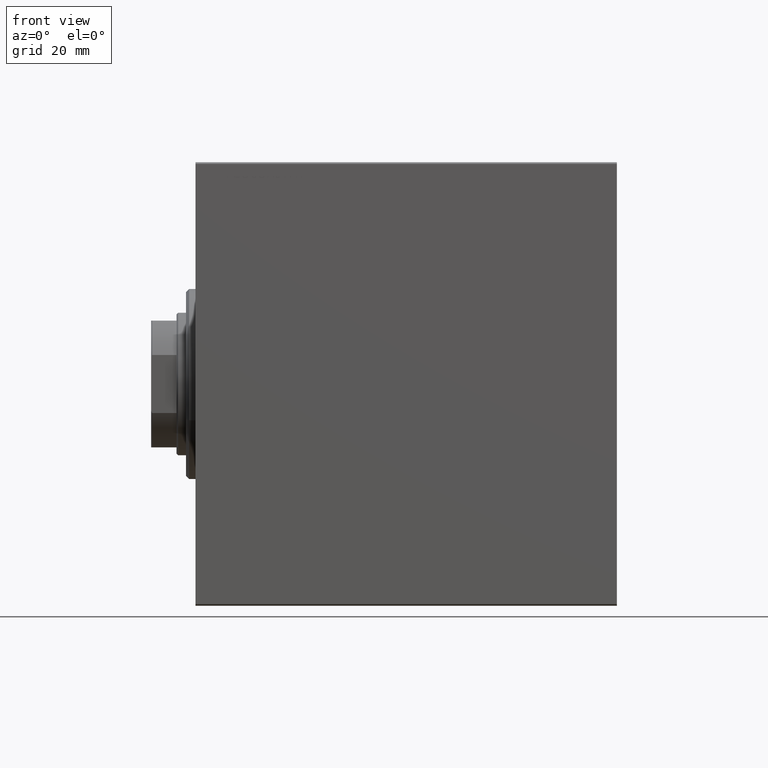
[diagram: clean part render]
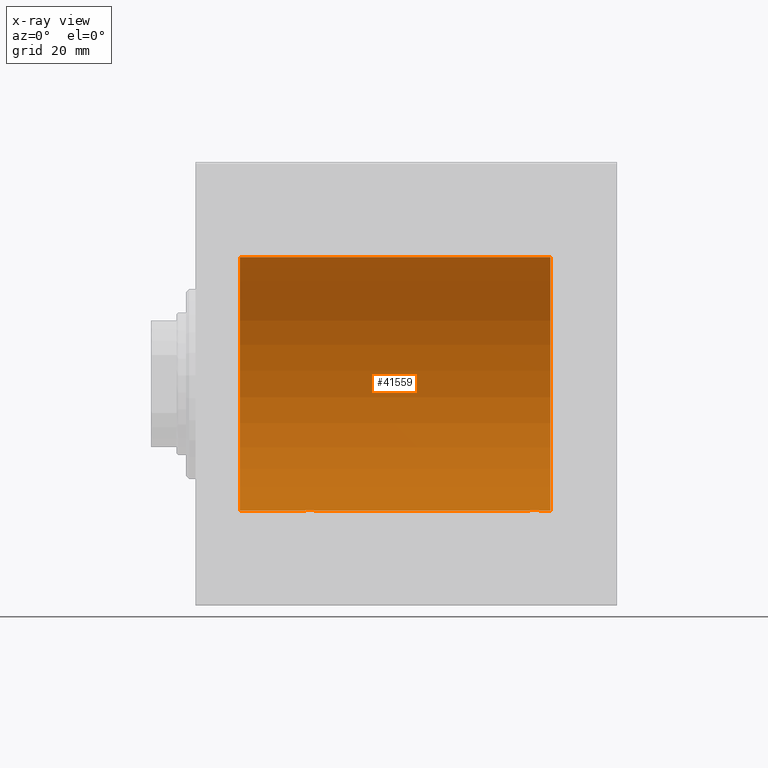
[diagram: x-ray — body ghosted, one internal face saturated and labeled with its STEP entity id]
A machine part, front view, then the same camera in x-ray: the body is ghosted and one INTERNAL B-rep face — a face not visible from any outside direction — is saturated and labeled: STEP entity #41559.
In plain terms, the highlighted cylindrical surface (partial cylindrical patch) has radius 40 mm, axis along (-1, -0, -0).
Its self-contained STEP definition (entity closure, byte-faithful):
#199 = CARTESIAN_POINT ( 'NONE',  ( 109.3851693796940339, 1.830069308885378110, -39.95844440547435283 ) ) ;
#1621 = CARTESIAN_POINT ( 'NONE',  ( 33.61400897252563880, 1.829066045078060476, -39.95849278436324425 ) ) ;
#1833 = CARTESIAN_POINT ( 'NONE',  ( 35.22113368114476373, 2.903851887155405986, -39.89447500423337800 ) ) ;
#2168 = DIRECTION ( 'NONE',  ( -1.000000000000000000, 0.000000000000000000, 0.000000000000000000 ) ) ;
#2203 = DIRECTION ( 'NONE',  ( -1.000000000000000000, -0.000000000000000000, -0.000000000000000000 ) ) ;
#2585 = VECTOR ( 'NONE', #9334, 1000.000000000000000 ) ;
#2707 = CARTESIAN_POINT ( 'NONE',  ( 37.82931819589460076, 2.385749008316991215, -39.92893738690724348 ) ) ;
#2888 = CARTESIAN_POINT ( 'NONE',  ( 105.6709769446327556, 2.696641662727015554, -39.90906847305313221 ) ) ;
#3010 = EDGE_CURVE ( 'NONE', #3362, #3631, #10875, .T. ) ;
#3062 = ORIENTED_EDGE ( 'NONE', *, *, #41254, .F. ) ;
#3312 = CARTESIAN_POINT ( 'NONE',  ( 109.6024213809765939, 1.505187563392004879, -39.97200074276641857 ) ) ;
#3362 = VERTEX_POINT ( 'NONE', #7033 ) ;
#3522 = CARTESIAN_POINT ( 'NONE',  ( 112.0000000000000000, 4.898587196589413026E-15, -40.00000000000000000 ) ) ;
#3631 = VERTEX_POINT ( 'NONE', #17435 ) ;
#3837 = ORIENTED_EDGE ( 'NONE', *, *, #26456, .F. ) ;
#4806 = CARTESIAN_POINT ( 'NONE',  ( 39.00000000000000000, 4.898587181755365697E-15, -40.00000000000000000 ) ) ;
#4881 = EDGE_CURVE ( 'NONE', #32832, #27364, #6000, .T. ) ;
#5386 = CARTESIAN_POINT ( 'NONE',  ( 35.60845757909898879, 2.980886287300823945, -39.88879301994635540 ) ) ;
#5534 = CARTESIAN_POINT ( 'NONE',  ( 112.0000000000000000, 4.898587196589413026E-15, -40.00000000000000000 ) ) ;
#5825 = CARTESIAN_POINT ( 'NONE',  ( 34.01744788009703058, 2.260036752248987479, -39.93634209860680073 ) ) ;
#5997 = CARTESIAN_POINT ( 'NONE',  ( 105.1684626644925515, 2.384195078505204179, -39.92903310064217948 ) ) ;
#6000 = LINE ( 'NONE', #19578, #2585 ) ;
#6264 = CARTESIAN_POINT ( 'NONE',  ( 37.50429356860058761, 2.602941461497656039, -39.91536715259250911 ) ) ;
#6475 = CARTESIAN_POINT ( 'NONE',  ( 38.69635323069529420, 1.329803094607265201, -39.97830262548650637 ) ) ;
#6648 = CARTESIAN_POINT ( 'NONE',  ( 107.9653829776025447, 2.847223932150729109, -39.89860891179019120 ) ) ;
#6863 = CARTESIAN_POINT ( 'NONE',  ( 105.4964356991660708, 2.603499486649436534, -39.91533365697402758 ) ) ;
#7033 = CARTESIAN_POINT ( 'NONE',  ( 104.0000000000000142, 4.637093495725619447E-15, -40.00000000000000000 ) ) ;
#8193 = AXIS2_PLACEMENT_3D ( 'NONE', #22638, #2168, #15731 ) ;
#8519 = CARTESIAN_POINT ( 'NONE',  ( 32.99999999999998579, 0.1982918730505277005, -39.99999999999999289 ) ) ;
#8805 = CARTESIAN_POINT ( 'NONE',  ( 13.99999999999999822, 0.000000000000000000, 40.00000000000000000 ) ) ;
#9158 = CARTESIAN_POINT ( 'NONE',  ( 33.74070487342093827, 1.983397227149410025, -39.95103655448513535 ) ) ;
#9334 = DIRECTION ( 'NONE',  ( -1.000000000000000000, -0.000000000000000000, -0.000000000000000000 ) ) ;
#9516 = LINE ( 'NONE', #5534, #26483 ) ;
#9549 = CARTESIAN_POINT ( 'NONE',  ( 104.0000000000000142, 4.637093495725619447E-15, -40.00000000000000000 ) ) ;
#9589 = CARTESIAN_POINT ( 'NONE',  ( 38.38516937969400544, 1.830069308885378776, -39.95844440547435283 ) ) ;
#9773 = CARTESIAN_POINT ( 'NONE',  ( 108.3286925611234324, 2.696891635062823145, -39.90905226542625428 ) ) ;
#9774 = CIRCLE ( 'NONE', #43208, 40.00000000000000000 ) ;
#9814 = CARTESIAN_POINT ( 'NONE',  ( 38.98037412309665228, 0.3947312521144721309, -39.99851454786933402 ) ) ;
#10718 = CARTESIAN_POINT ( 'NONE',  ( 112.0000000000000000, 4.898587196589413026E-15, -40.00000000000000000 ) ) ;
#10875 = B_SPLINE_CURVE_WITH_KNOTS ( 'NONE', 3,
 ( #9549, #19804, #26932, #30035, #33381, #34033, #29817, #36497, #30680, #40924, #5997, #6863, #2888, #40501, #20444, #30471, #43401, #37153, #20021, #12885, #6648, #9773, #17104, #27351, #44049, #23359, #199, #3312, #20228, #33814, #13537, #13747, #19576, #13324 ),
 .UNSPECIFIED., .F., .F.,
 ( 4, 2, 2, 2, 2, 2, 2, 2, 2, 2, 2, 2, 2, 2, 2, 2, 4 ),
 ( 2.896319777372915407E-19, 0.0005864162728940708162, 0.001172832545788141199, 0.001759248818682211798, 0.002345665091576282398, 0.002932081364470352780, 0.003518497637364423596, 0.004104913910258493545, 0.004691330183152563928, 0.005277746456046634310, 0.005864162728940704693, 0.006450579001834775075, 0.007036995274728846325, 0.007623411547622916708, 0.008209827820516987090, 0.008796244093411056605, 0.009382660366305127855 ),
 .UNSPECIFIED. ) ;
#11496 = CARTESIAN_POINT ( 'NONE',  ( 112.0000000000000000, 0.000000000000000000, 0.000000000000000000 ) ) ;
#11836 = CARTESIAN_POINT ( 'NONE',  ( 36.19466961372759073, 3.000070108558761994, -39.88733607736547526 ) ) ;
#12273 = CARTESIAN_POINT ( 'NONE',  ( 35.80317550223061573, 2.999929504480807196, -39.88734665245503663 ) ) ;
#12800 = VECTOR ( 'NONE', #31200, 1000.000000000000000 ) ;
#12885 = CARTESIAN_POINT ( 'NONE',  ( 107.7783335886197591, 2.903909245874817913, -39.89447063612582411 ) ) ;
#13045 = LINE ( 'NONE', #27294, #27415 ) ;
#13324 = CARTESIAN_POINT ( 'NONE',  ( 110.0000000000000142, 4.898587181754971267E-15, -40.00000000000000000 ) ) ;
#13537 = CARTESIAN_POINT ( 'NONE',  ( 109.9036449538775031, 0.7792872749133338273, -39.99287049138470707 ) ) ;
#13747 = CARTESIAN_POINT ( 'NONE',  ( 109.9803741230966807, 0.3947312521144710207, -39.99851454786935534 ) ) ;
#15170 = CARTESIAN_POINT ( 'NONE',  ( 34.49643569916604946, 2.603499486649436090, -39.91533365697402758 ) ) ;
#15499 = FACE_OUTER_BOUND ( 'NONE', #36650, .T. ) ;
#15621 = CARTESIAN_POINT ( 'NONE',  ( 34.67097694463277691, 2.696641662727018662, -39.90906847305313221 ) ) ;
#15731 = DIRECTION ( 'NONE',  ( 0.000000000000000000, 0.000000000000000000, 1.000000000000000000 ) ) ;
#16804 = VERTEX_POINT ( 'NONE', #4806 ) ;
#17104 = CARTESIAN_POINT ( 'NONE',  ( 108.5042935686005876, 2.602941461497659148, -39.91536715259250911 ) ) ;
#17435 = CARTESIAN_POINT ( 'NONE',  ( 110.0000000000000142, 4.898587181754971267E-15, -40.00000000000000000 ) ) ;
#17626 = LINE ( 'NONE', #10718, #12800 ) ;
#18537 = CARTESIAN_POINT ( 'NONE',  ( 33.15345075433262423, 0.9673820216299632291, -39.98871336974453072 ) ) ;
#19187 = CARTESIAN_POINT ( 'NONE',  ( 33.39625884821743540, 1.502986292339240970, -39.97208601512195258 ) ) ;
#19398 = CARTESIAN_POINT ( 'NONE',  ( 36.39350206392951037, 2.980544951704998002, -39.88881833341080352 ) ) ;
#19576 = CARTESIAN_POINT ( 'NONE',  ( 110.0000000000000000, 0.1958295874890062238, -39.99999999999998579 ) ) ;
#19578 = CARTESIAN_POINT ( 'NONE',  ( 112.0000000000000000, 0.000000000000000000, 40.00000000000000000 ) ) ;
#19769 = CARTESIAN_POINT ( 'NONE',  ( 32.99999999999999289, 8.398598542115384856E-15, -40.00000000000000000 ) ) ;
#19804 = CARTESIAN_POINT ( 'NONE',  ( 104.0000000000000000, 0.1982918730505244809, -39.99999999999999289 ) ) ;
#19805 = EDGE_CURVE ( 'NONE', #26474, #20136, #17626, .T. ) ;
#19968 = DIRECTION ( 'NONE',  ( -1.000000000000000000, -0.000000000000000000, -0.000000000000000000 ) ) ;
#20021 = CARTESIAN_POINT ( 'NONE',  ( 107.3935020639295175, 2.980544951705004220, -39.88881833341080352 ) ) ;
#20059 = CARTESIAN_POINT ( 'NONE',  ( 39.00000000000000000, 4.898587181755365697E-15, -40.00000000000000000 ) ) ;
#20136 = VERTEX_POINT ( 'NONE', #42726 ) ;
#20164 = ORIENTED_EDGE ( 'NONE', *, *, #3010, .T. ) ;
#20228 = CARTESIAN_POINT ( 'NONE',  ( 109.6963532306952942, 1.329803094607269864, -39.97830262548650637 ) ) ;
#20265 = CARTESIAN_POINT ( 'NONE',  ( 37.98082985603886641, 2.261756164323886154, -39.93625070860936432 ) ) ;
#20386 = DIRECTION ( 'NONE',  ( -1.000000000000000000, 0.000000000000000000, 0.000000000000000000 ) ) ;
#20444 = CARTESIAN_POINT ( 'NONE',  ( 106.2211336811447779, 2.903851887155409539, -39.89447500423337800 ) ) ;
#21737 = CIRCLE ( 'NONE', #8193, 40.00000000000000000 ) ;
#21873 = CARTESIAN_POINT ( 'NONE',  ( 33.01946630431021390, 0.3932559001416509048, -39.99852666141217838 ) ) ;
#22099 = CARTESIAN_POINT ( 'NONE',  ( 32.99999999999999289, 8.398598542115384856E-15, -40.00000000000000000 ) ) ;
#22638 = CARTESIAN_POINT ( 'NONE',  ( 13.99999999999999822, 0.000000000000000000, 0.000000000000000000 ) ) ;
#23353 = EDGE_CURVE ( 'NONE', #26474, #16804, #25862, .T. ) ;
#23359 = CARTESIAN_POINT ( 'NONE',  ( 109.2609839386316963, 1.981711254113875054, -39.95112616827061913 ) ) ;
#24662 = CARTESIAN_POINT ( 'NONE',  ( 112.0000000000000000, 0.000000000000000000, 40.00000000000000000 ) ) ;
#24714 = AXIS2_PLACEMENT_3D ( 'NONE', #11496, #35555, #28870 ) ;
#25862 = B_SPLINE_CURVE_WITH_KNOTS ( 'NONE', 3,
 ( #22099, #8519, #21873, #32321, #18537, #26084, #19187, #1621, #9158, #5825, #42792, #15170, #15621, #42351, #1833, #5386, #12273, #11836, #19398, #29211, #39444, #26972, #6264, #2707, #20265, #30287, #9589, #30718, #6475, #37396, #40538, #9814, #33849, #20059 ),
 .UNSPECIFIED., .F., .F.,
 ( 4, 2, 2, 2, 2, 2, 2, 2, 2, 2, 2, 2, 2, 2, 2, 2, 4 ),
 ( 3.904922793221654316E-19, 0.0005864162728940700573, 0.001172832545788139681, 0.001759248818682208762, 0.002345665091576278061, 0.002932081364470347576, 0.003518497637364417091, 0.004104913910258486606, 0.004691330183152556121, 0.005277746456046625637, 0.005864162728940695152, 0.006450579001834764667, 0.007036995274728834182, 0.007623411547622903697, 0.008209827820516973212, 0.008796244093411044462, 0.009382660366305113978 ),
 .UNSPECIFIED. ) ;
#26084 = CARTESIAN_POINT ( 'NONE',  ( 33.30408795818954104, 1.330687358699887968, -39.97827280031936681 ) ) ;
#26456 = EDGE_CURVE ( 'NONE', #3362, #16804, #9516, .T. ) ;
#26474 = VERTEX_POINT ( 'NONE', #19769 ) ;
#26483 = VECTOR ( 'NONE', #2203, 1000.000000000000000 ) ;
#26932 = CARTESIAN_POINT ( 'NONE',  ( 104.0194663043102139, 0.3932559001416466860, -39.99852666141217838 ) ) ;
#26972 = CARTESIAN_POINT ( 'NONE',  ( 37.32869256112343237, 2.696891635062812487, -39.90905226542624717 ) ) ;
#27294 = CARTESIAN_POINT ( 'NONE',  ( 112.0000000000000000, 4.898587196589413026E-15, -40.00000000000000000 ) ) ;
#27296 = CARTESIAN_POINT ( 'NONE',  ( 112.0000000000000000, 0.000000000000000000, 0.000000000000000000 ) ) ;
#27351 = CARTESIAN_POINT ( 'NONE',  ( 108.8293181958945866, 2.385749008316995656, -39.92893738690724348 ) ) ;
#27364 = VERTEX_POINT ( 'NONE', #8805 ) ;
#27415 = VECTOR ( 'NONE', #19968, 1000.000000000000000 ) ;
#28870 = DIRECTION ( 'NONE',  ( 0.000000000000000000, 0.000000000000000000, 1.000000000000000000 ) ) ;
#29090 = CYLINDRICAL_SURFACE ( 'NONE', #24714, 40.00000000000000000 ) ;
#29211 = CARTESIAN_POINT ( 'NONE',  ( 36.77833358861975199, 2.903909245874810363, -39.89447063612582411 ) ) ;
#29817 = CARTESIAN_POINT ( 'NONE',  ( 104.3962588482174567, 1.502986292339242747, -39.97208601512195258 ) ) ;
#30035 = CARTESIAN_POINT ( 'NONE',  ( 104.0957262881456700, 0.7768046863726149054, -39.99291636985138609 ) ) ;
#30194 = DIRECTION ( 'NONE',  ( 0.000000000000000000, 0.000000000000000000, 1.000000000000000000 ) ) ;
#30287 = CARTESIAN_POINT ( 'NONE',  ( 38.26098393863168923, 1.981711254113870613, -39.95112616827061913 ) ) ;
#30471 = CARTESIAN_POINT ( 'NONE',  ( 106.6084575790990385, 2.980886287300827941, -39.88879301994635540 ) ) ;
#30680 = CARTESIAN_POINT ( 'NONE',  ( 104.7407048734209525, 1.983397227149415132, -39.95103655448512825 ) ) ;
#30718 = CARTESIAN_POINT ( 'NONE',  ( 38.60242138097658682, 1.505187563392005323, -39.97200074276641857 ) ) ;
#31200 = DIRECTION ( 'NONE',  ( -1.000000000000000000, -0.000000000000000000, -0.000000000000000000 ) ) ;
#32321 = CARTESIAN_POINT ( 'NONE',  ( 33.09572628814569129, 0.7768046863726183471, -39.99291636985139320 ) ) ;
#32832 = VERTEX_POINT ( 'NONE', #24662 ) ;
#33381 = CARTESIAN_POINT ( 'NONE',  ( 104.1534507543326384, 0.9673820216299624519, -39.98871336974454493 ) ) ;
#33814 = CARTESIAN_POINT ( 'NONE',  ( 109.8469143336089360, 0.9663207501652162357, -39.98873943115997065 ) ) ;
#33849 = CARTESIAN_POINT ( 'NONE',  ( 39.00000000000000000, 0.1958295874890065291, -40.00000000000000711 ) ) ;
#34033 = CARTESIAN_POINT ( 'NONE',  ( 104.3040879581895126, 1.330687358699887968, -39.97827280031935970 ) ) ;
#34106 = ORIENTED_EDGE ( 'NONE', *, *, #35417, .T. ) ;
#35417 = EDGE_CURVE ( 'NONE', #27364, #20136, #21737, .T. ) ;
#35555 = DIRECTION ( 'NONE',  ( -1.000000000000000000, -0.000000000000000000, -0.000000000000000000 ) ) ;
#35670 = ORIENTED_EDGE ( 'NONE', *, *, #19805, .F. ) ;
#36145 = ORIENTED_EDGE ( 'NONE', *, *, #4881, .T. ) ;
#36497 = CARTESIAN_POINT ( 'NONE',  ( 104.6140089725256388, 1.829066045078062919, -39.95849278436325136 ) ) ;
#36614 = EDGE_CURVE ( 'NONE', #43572, #3631, #13045, .T. ) ;
#36650 = EDGE_LOOP ( 'NONE', ( #43681, #3062, #36145, #34106, #35670, #39742, #3837, #20164 ) ) ;
#37153 = CARTESIAN_POINT ( 'NONE',  ( 107.1946696137275836, 3.000070108558766435, -39.88733607736547526 ) ) ;
#37396 = CARTESIAN_POINT ( 'NONE',  ( 38.84691433360895019, 0.9663207501652123499, -39.98873943115997776 ) ) ;
#39444 = CARTESIAN_POINT ( 'NONE',  ( 36.96538297760252334, 2.847223932150720671, -39.89860891179020541 ) ) ;
#39742 = ORIENTED_EDGE ( 'NONE', *, *, #23353, .T. ) ;
#40501 = CARTESIAN_POINT ( 'NONE',  ( 106.0319915523671455, 2.846249845702978121, -39.89867772821342129 ) ) ;
#40538 = CARTESIAN_POINT ( 'NONE',  ( 38.90364495387748889, 0.7792872749133341603, -39.99287049138470707 ) ) ;
#40924 = CARTESIAN_POINT ( 'NONE',  ( 105.0174478800970519, 2.260036752248992808, -39.93634209860680073 ) ) ;
#41254 = EDGE_CURVE ( 'NONE', #32832, #43572, #9774, .T. ) ;
#41559 = ADVANCED_FACE ( 'NONE', ( #15499 ), #29090, .F. ) ;
#42351 = CARTESIAN_POINT ( 'NONE',  ( 35.03199155236713835, 2.846249845702978565, -39.89867772821342129 ) ) ;
#42726 = CARTESIAN_POINT ( 'NONE',  ( 13.99999999999999822, 4.898587196589413026E-15, -40.00000000000000000 ) ) ;
#42792 = CARTESIAN_POINT ( 'NONE',  ( 34.16846266449255154, 2.384195078505205512, -39.92903310064217948 ) ) ;
#43208 = AXIS2_PLACEMENT_3D ( 'NONE', #27296, #20386, #30194 ) ;
#43401 = CARTESIAN_POINT ( 'NONE',  ( 106.8031755022306157, 2.999929504480810749, -39.88734665245503663 ) ) ;
#43572 = VERTEX_POINT ( 'NONE', #3522 ) ;
#43681 = ORIENTED_EDGE ( 'NONE', *, *, #36614, .F. ) ;
#44049 = CARTESIAN_POINT ( 'NONE',  ( 108.9808298560388806, 2.261756164323891038, -39.93625070860936432 ) ) ;